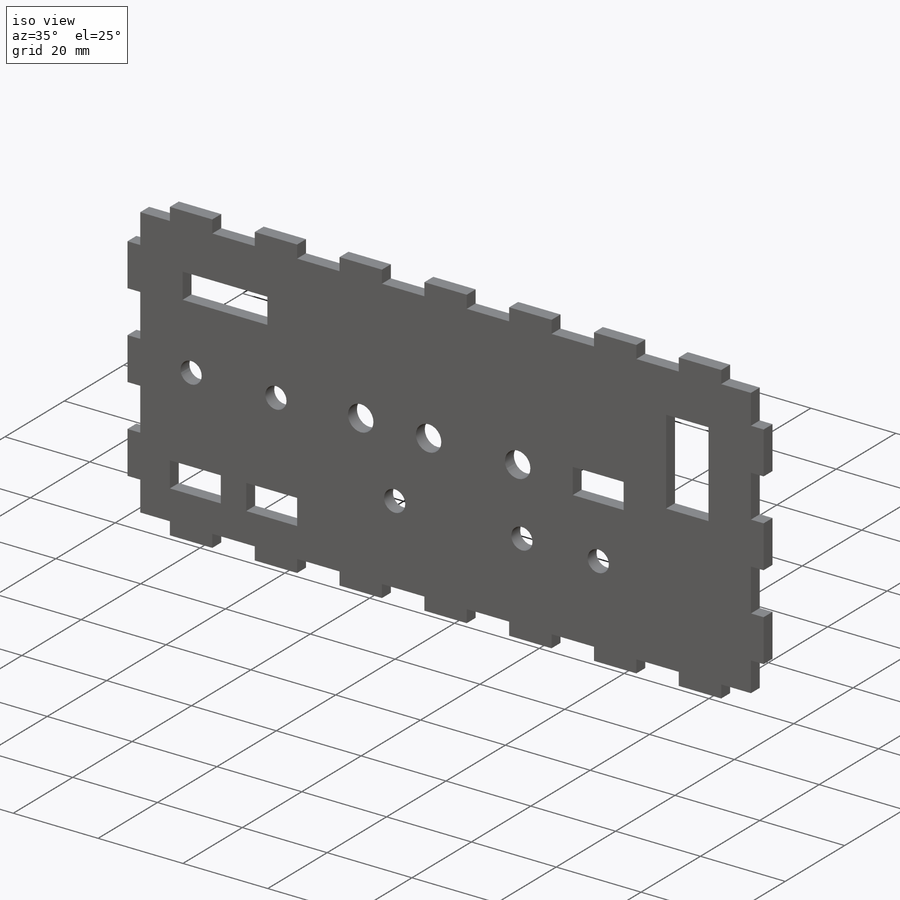
[diagram: iso view]
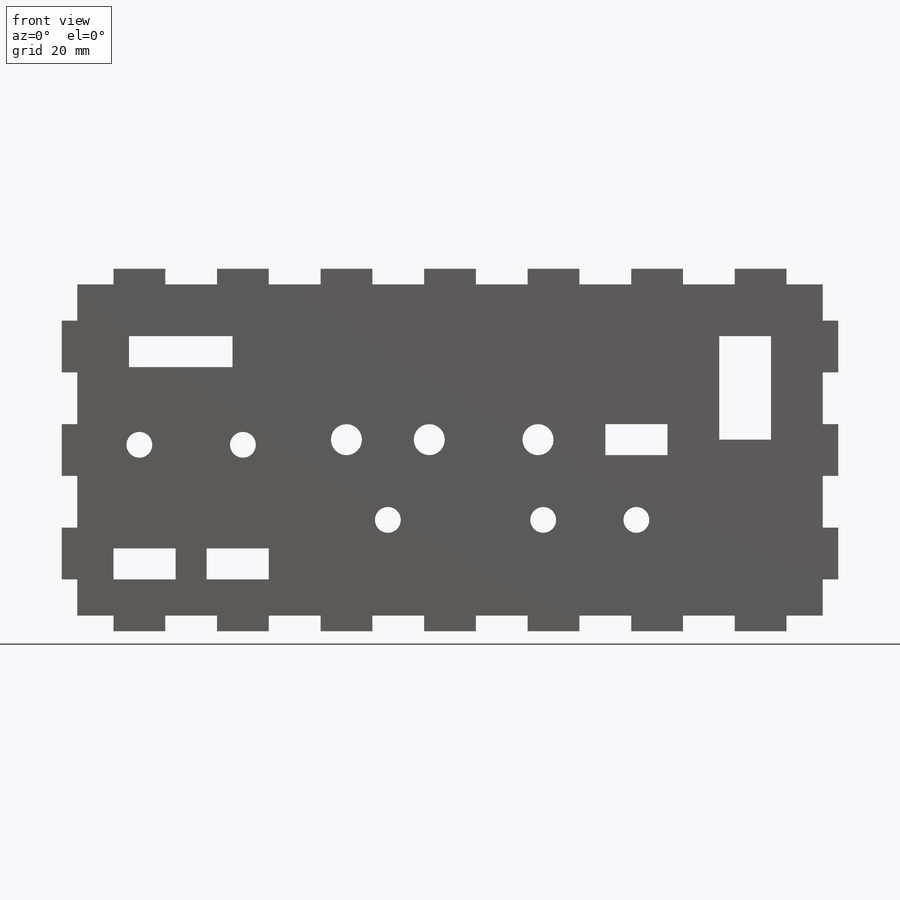
[diagram: front view]
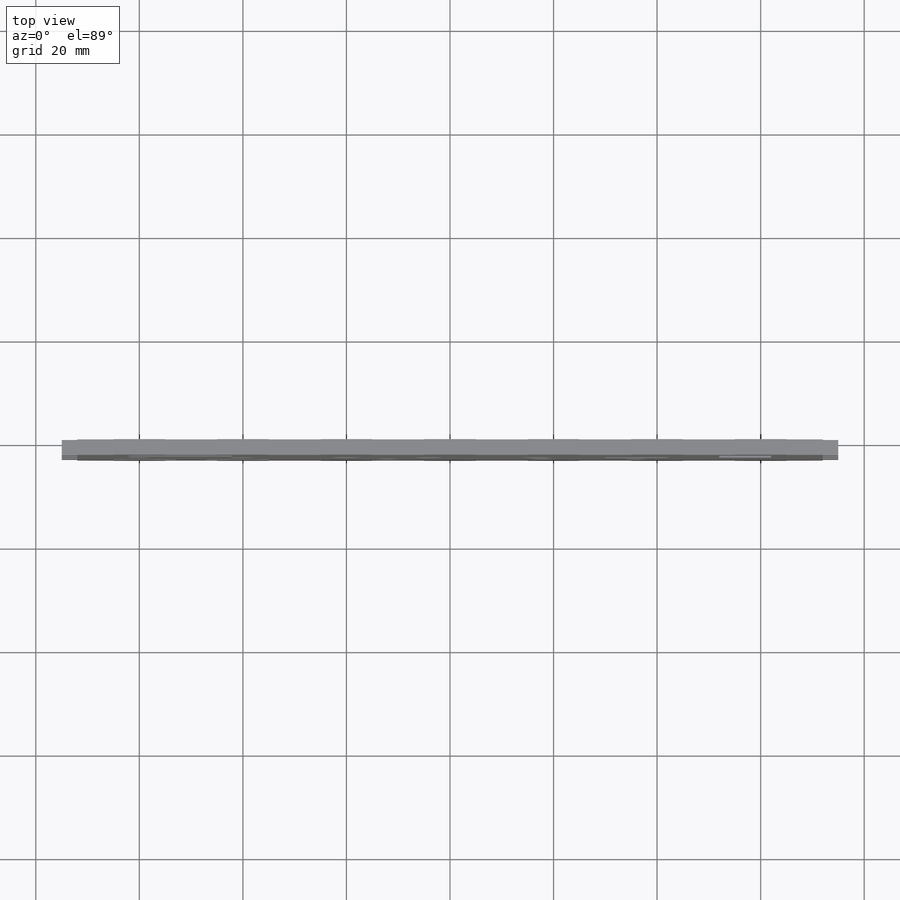
[diagram: top view]
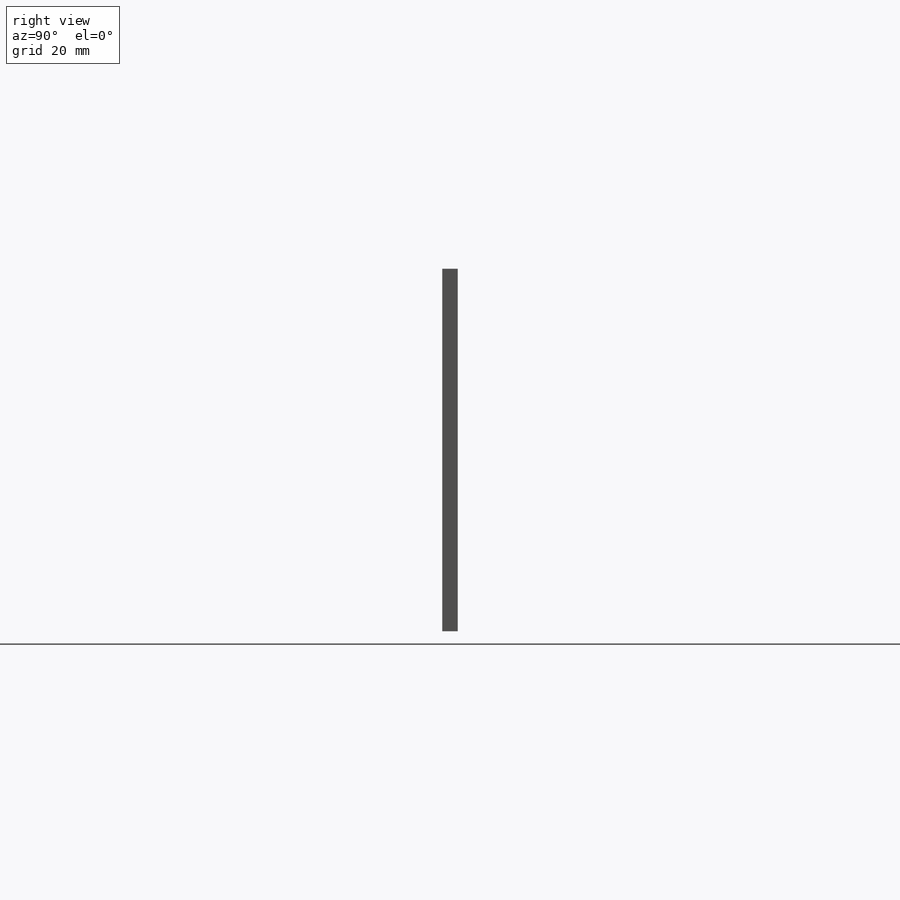
[diagram: right view]
SOLIDWORKS PART (.sldprt)
format: sldprt  version: not decoded by parser v0  size: 491,008 bytes
history: native  units: mm
features: sketch x12, cut_extrude x11, pattern_linear x2, mirror x2, material x1, extrude x1 (+13 scaffold rows collapsed)
feature tree (42):
  scaffold x13  (default folders/planes/origin — collapsed)
  material  "Material <not specified>"
  sketch  "Sketch1"  dims[D1=150.0mm D2=70.0mm]
  extrude  "Boss-Extrude1"  Depth=3mm
  sketch  "Sketch2"  dims[D1=3.0mm D2=10.0mm]
  cut_extrude  "Cut-Extrude1"  Depth=3mm
  pattern_linear  "LPattern3"  Count1=8 Count2=1 Spacing1=20mm Spacing2=50mm
  mirror  "Mirror1"
  sketch  "Sketch3"  dims[D1=10.0mm D2=3.0mm D3=3.0mm]
  cut_extrude  "Cut-Extrude2"  Depth=3mm
  pattern_linear  "LPattern4"  Count1=4 Count2=1 Spacing1=20mm Spacing2=50mm
  mirror  "Mirror2"
  sketch  "Sketch4"  dims[D1=20.0mm D2=6.0mm D3=13.0mm D4=13.0mm]
  cut_extrude  "Cut-Extrude3"  Depth=3mm
  sketch  "Sketch5"  dims[D1=5.0mm D2=5.0mm D3=15.0mm D4=15.0mm D5=15.0mm D6=20.0mm]
  cut_extrude  "Cut-Extrude5"  Depth=3mm
  sketch  "Sketch6"  dims[D1=12.0mm D2=6.0mm D3=12.0mm D4=6.0mm D5=6.0mm D6=10.0mm D7=10.0mm D8=10.0mm]
  cut_extrude  "Cut-Extrude6"  Depth=3mm
  sketch  "Sketch7"  dims[D1=6.0mm D2=6.0mm D3=20.0mm D4=16.0mm D5=33.0mm D6=33.0mm]
  cut_extrude  "Cut-Extrude7"  Depth=3mm
  sketch  "Sketch8"  dims[c1.D1=5.0mm c1.D3=6.0mm c1.D2=63.0mm c2.D3=15.5mm]
  cut_extrude  "Cut-Extrude8"  Depth=3mm
  sketch  "Sketch9"  dims[c1.D1=6.0mm c1.D3=6.0mm c1.D2=33.0mm c2.D3=21.0mm]
  cut_extrude  "Cut-Extrude9"  Depth=3mm
  sketch  "Sketch10"  dims[D1=6.0mm D2=12.0mm D3=30.0mm D4=13.0mm]
  cut_extrude  "Cut-Extrude10"  Depth=3mm
  sketch  "Sketch11"  dims[D1=5.0mm D2=5.0mm D3=48.5mm D4=48.5mm D5=18.0mm D6=30.0mm]
  cut_extrude  "Cut-Extrude11"  Depth=3mm
  sketch  "Sketch12"  dims[D1=10.0mm D2=20.0mm D3=13.0mm D4=13.0mm]
  cut_extrude  "Cut-Extrude12"  Depth=3mm
decode coverage: 26 of 28 modeling features carry decoded parameters
note: suppression state not decoded; provenance and decode notes live in map.json
